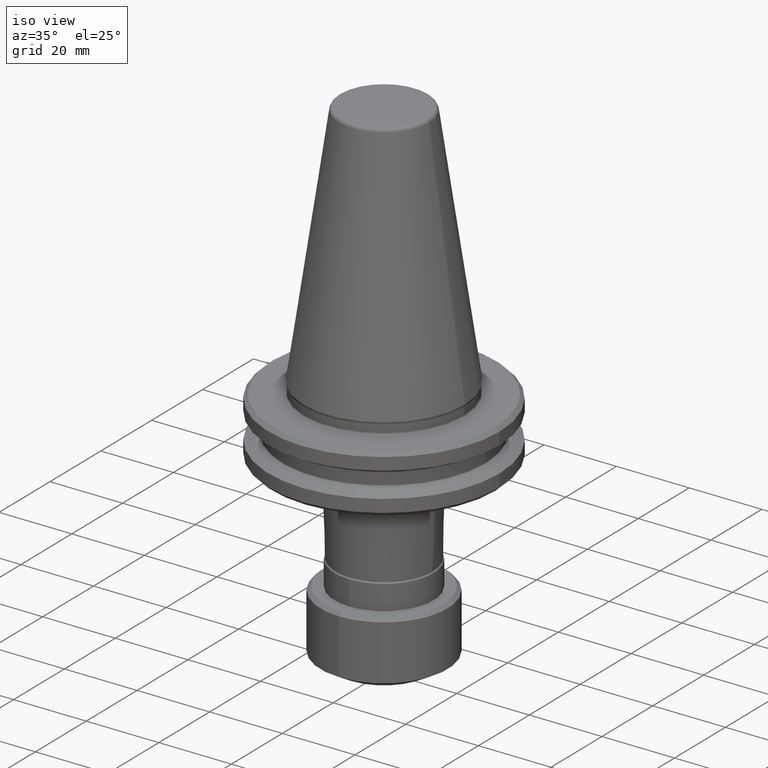
[diagram: clean part render]
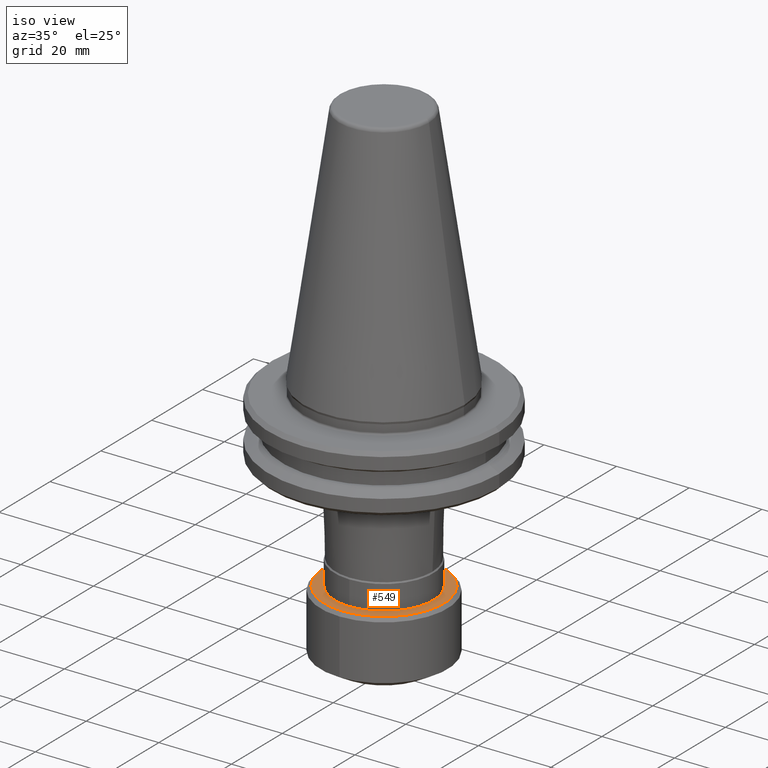
[diagram: same view with one face highlighted and labeled with its STEP entity id]
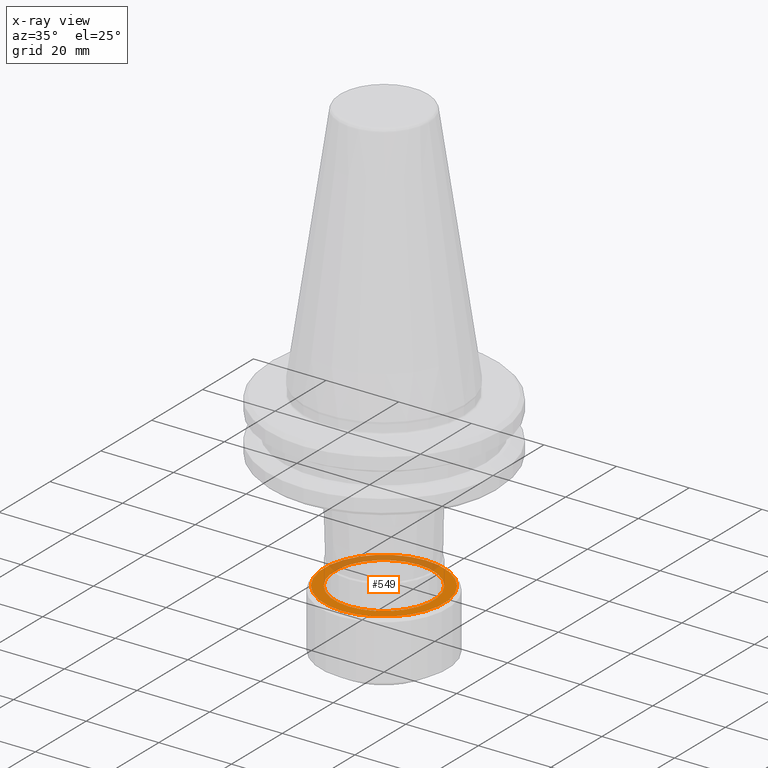
[diagram: x-ray of the same camera — body ghosted, the highlighted face saturated]
A machine part, iso view. The second image highlights one B-rep face of the part: STEP entity #549.
The next image is the same camera in x-ray: the body ghosted, the highlighted face saturated — about 29% of this face is hidden behind the body in this view.
In plain terms, the highlighted planar face has unit normal (-0, 0, -1).
Its self-contained STEP definition (entity closure, byte-faithful):
#6 = CIRCLE ( 'NONE', #32, 16.50000000004491700 ) ;
#20 = CIRCLE ( 'NONE', #429, 13.59445882149121400 ) ;
#32 = AXIS2_PLACEMENT_3D ( 'NONE', #1093, #535, #1186 ) ;
#176 = EDGE_LOOP ( 'NONE', ( #471, #227 ) ) ;
#184 = CARTESIAN_POINT ( 'NONE',  ( 2.081899558556001400E-015, -16.50000000004493100, 37.49960757508667800 ) ) ;
#217 = DIRECTION ( 'NONE',  ( -0.0000000000000000000, 1.224646799147353200E-016, -1.000000000000000000 ) ) ;
#225 = DIRECTION ( 'NONE',  ( -0.0000000000000000000, 1.224646799147353200E-016, -1.000000000000000000 ) ) ;
#227 = ORIENTED_EDGE ( 'NONE', *, *, #862, .T. ) ;
#249 = CIRCLE ( 'NONE', #536, 16.50000000004491700 ) ;
#279 = CIRCLE ( 'NONE', #608, 13.59445882149121400 ) ;
#389 = FACE_BOUND ( 'NONE', #176, .T. ) ;
#415 = DIRECTION ( 'NONE',  ( 0.0000000000000000000, 1.000000000000000000, 1.224646799147353200E-016 ) ) ;
#420 = VERTEX_POINT ( 'NONE', #460 ) ;
#425 = CARTESIAN_POINT ( 'NONE',  ( 0.0000000000000000000, 13.59445882149120200, 37.49960757508667800 ) ) ;
#429 = AXIS2_PLACEMENT_3D ( 'NONE', #869, #225, #542 ) ;
#433 = VERTEX_POINT ( 'NONE', #425 ) ;
#460 = CARTESIAN_POINT ( 'NONE',  ( 0.0000000000000000000, 16.50000000004490300, 37.49960757508667800 ) ) ;
#463 = EDGE_CURVE ( 'NONE', #420, #537, #249, .T. ) ;
#471 = ORIENTED_EDGE ( 'NONE', *, *, #788, .T. ) ;
#535 = DIRECTION ( 'NONE',  ( -0.0000000000000000000, 1.224646799147353200E-016, -1.000000000000000000 ) ) ;
#536 = AXIS2_PLACEMENT_3D ( 'NONE', #865, #217, #948 ) ;
#537 = VERTEX_POINT ( 'NONE', #184 ) ;
#542 = DIRECTION ( 'NONE',  ( 0.0000000000000000000, 1.000000000000000000, 0.0000000000000000000 ) ) ;
#549 = ADVANCED_FACE ( 'NONE', ( #389, #917 ), #924, .F. ) ;
#552 = ORIENTED_EDGE ( 'NONE', *, *, #757, .F. ) ;
#557 = EDGE_LOOP ( 'NONE', ( #1074, #552 ) ) ;
#608 = AXIS2_PLACEMENT_3D ( 'NONE', #1201, #674, #1301 ) ;
#674 = DIRECTION ( 'NONE',  ( -0.0000000000000000000, 1.224646799147353200E-016, -1.000000000000000000 ) ) ;
#679 = VERTEX_POINT ( 'NONE', #1050 ) ;
#689 = AXIS2_PLACEMENT_3D ( 'NONE', #1272, #1006, #415 ) ;
#757 = EDGE_CURVE ( 'NONE', #537, #420, #6, .T. ) ;
#788 = EDGE_CURVE ( 'NONE', #433, #679, #279, .T. ) ;
#862 = EDGE_CURVE ( 'NONE', #679, #433, #20, .T. ) ;
#865 = CARTESIAN_POINT ( 'NONE',  ( 0.0000000000000000000, -1.283305650558434400E-014, 37.49960757508667800 ) ) ;
#869 = CARTESIAN_POINT ( 'NONE',  ( 0.0000000000000000000, -1.283305650558434400E-014, 37.49960757508667800 ) ) ;
#917 = FACE_OUTER_BOUND ( 'NONE', #557, .T. ) ;
#924 = PLANE ( 'NONE',  #689 ) ;
#948 = DIRECTION ( 'NONE',  ( 0.0000000000000000000, 1.000000000000000000, 0.0000000000000000000 ) ) ;
#1006 = DIRECTION ( 'NONE',  ( -0.0000000000000000000, 1.224646799147353200E-016, -1.000000000000000000 ) ) ;
#1050 = CARTESIAN_POINT ( 'NONE',  ( 1.664841048187971800E-015, -13.59445882149122700, 37.49960757508667800 ) ) ;
#1074 = ORIENTED_EDGE ( 'NONE', *, *, #463, .F. ) ;
#1093 = CARTESIAN_POINT ( 'NONE',  ( 0.0000000000000000000, -1.283305650558434400E-014, 37.49960757508667800 ) ) ;
#1186 = DIRECTION ( 'NONE',  ( 0.0000000000000000000, 1.000000000000000000, 0.0000000000000000000 ) ) ;
#1201 = CARTESIAN_POINT ( 'NONE',  ( 0.0000000000000000000, -1.283305650558434400E-014, 37.49960757508667800 ) ) ;
#1272 = CARTESIAN_POINT ( 'NONE',  ( 0.0000000000000000000, 1.237301820699398900E-031, 37.49960757508667800 ) ) ;
#1301 = DIRECTION ( 'NONE',  ( 0.0000000000000000000, 1.000000000000000000, 0.0000000000000000000 ) ) ;